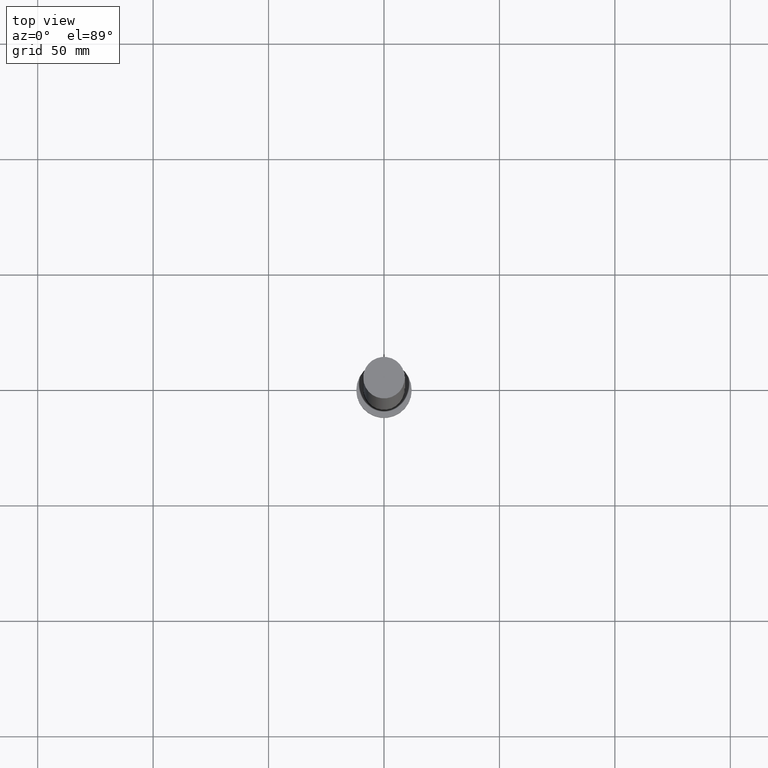
[diagram: clean part render]
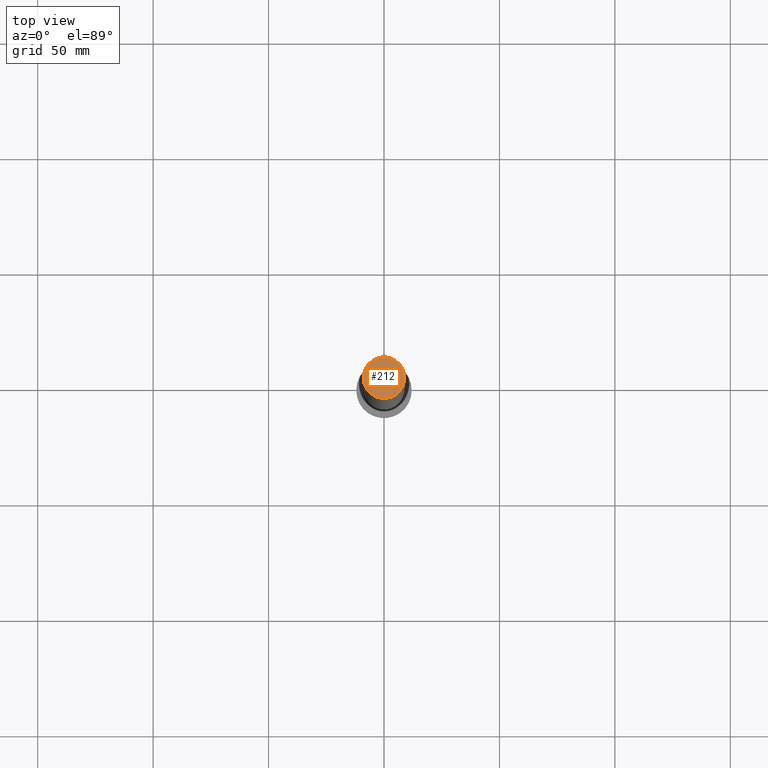
[diagram: same view with one face highlighted and labeled with its STEP entity id]
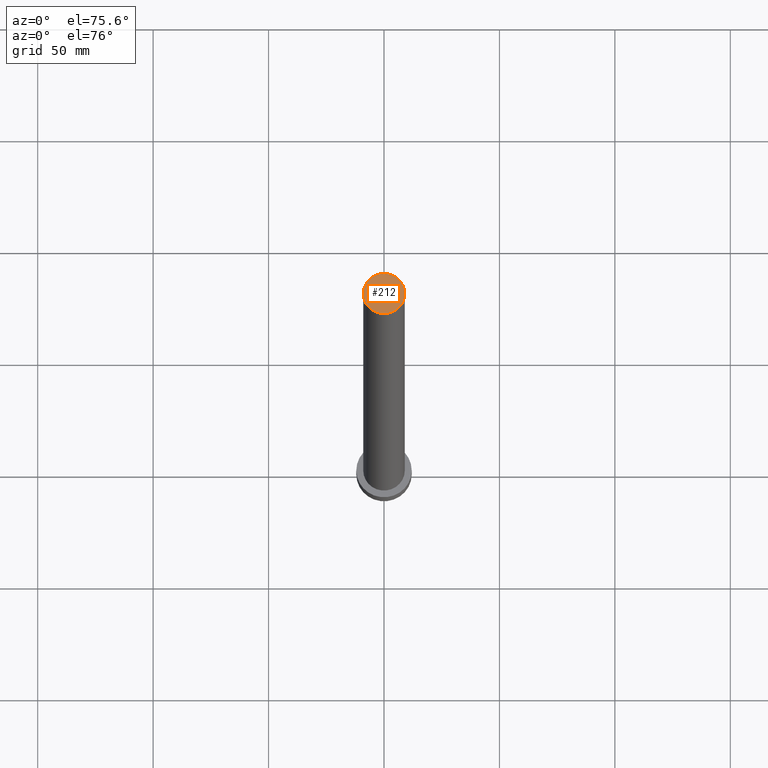
[diagram: same view with one face highlighted and labeled with its STEP entity id]
A machine part, top view. The second image highlights one B-rep face of the part: STEP entity #212.
A second angle (auxiliary view) of the same face is appended — the face is thin or edge-on in the first view.
In plain terms, the highlighted planar face has unit normal (0, 0, 1).
Its self-contained STEP definition (entity closure, byte-faithful):
#7 = DIRECTION ( 'NONE',  ( 1.000000000000000000, 0.000000000000000000, -0.000000000000000000 ) ) ;
#9 = EDGE_LOOP ( 'NONE', ( #119, #251 ) ) ;
#11 = CIRCLE ( 'NONE', #122, 9.000000000000000000 ) ;
#13 = DIRECTION ( 'NONE',  ( 0.000000000000000000, 0.000000000000000000, 1.000000000000000000 ) ) ;
#19 = CARTESIAN_POINT ( 'NONE',  ( 9.000000000000000000, 1.102182119232617714E-15, 315.0000000000000000 ) ) ;
#79 = EDGE_CURVE ( 'NONE', #209, #234, #242, .T. ) ;
#103 = PLANE ( 'NONE',  #114 ) ;
#105 = CARTESIAN_POINT ( 'NONE',  ( 0.000000000000000000, 0.000000000000000000, 315.0000000000000000 ) ) ;
#110 = DIRECTION ( 'NONE',  ( 0.000000000000000000, 0.000000000000000000, 1.000000000000000000 ) ) ;
#114 = AXIS2_PLACEMENT_3D ( 'NONE', #105, #197, #7 ) ;
#118 = EDGE_CURVE ( 'NONE', #234, #209, #11, .T. ) ;
#119 = ORIENTED_EDGE ( 'NONE', *, *, #79, .T. ) ;
#122 = AXIS2_PLACEMENT_3D ( 'NONE', #162, #110, #178 ) ;
#124 = CARTESIAN_POINT ( 'NONE',  ( -9.000000000000000000, 0.000000000000000000, 315.0000000000000000 ) ) ;
#130 = CARTESIAN_POINT ( 'NONE',  ( 0.000000000000000000, 0.000000000000000000, 315.0000000000000000 ) ) ;
#146 = AXIS2_PLACEMENT_3D ( 'NONE', #130, #13, #175 ) ;
#162 = CARTESIAN_POINT ( 'NONE',  ( 0.000000000000000000, 0.000000000000000000, 315.0000000000000000 ) ) ;
#175 = DIRECTION ( 'NONE',  ( 1.000000000000000000, 0.000000000000000000, 0.000000000000000000 ) ) ;
#178 = DIRECTION ( 'NONE',  ( 1.000000000000000000, 0.000000000000000000, 0.000000000000000000 ) ) ;
#197 = DIRECTION ( 'NONE',  ( 0.000000000000000000, 0.000000000000000000, 1.000000000000000000 ) ) ;
#209 = VERTEX_POINT ( 'NONE', #124 ) ;
#212 = ADVANCED_FACE ( 'NONE', ( #214 ), #103, .T. ) ;
#214 = FACE_OUTER_BOUND ( 'NONE', #9, .T. ) ;
#234 = VERTEX_POINT ( 'NONE', #19 ) ;
#242 = CIRCLE ( 'NONE', #146, 9.000000000000000000 ) ;
#251 = ORIENTED_EDGE ( 'NONE', *, *, #118, .T. ) ;